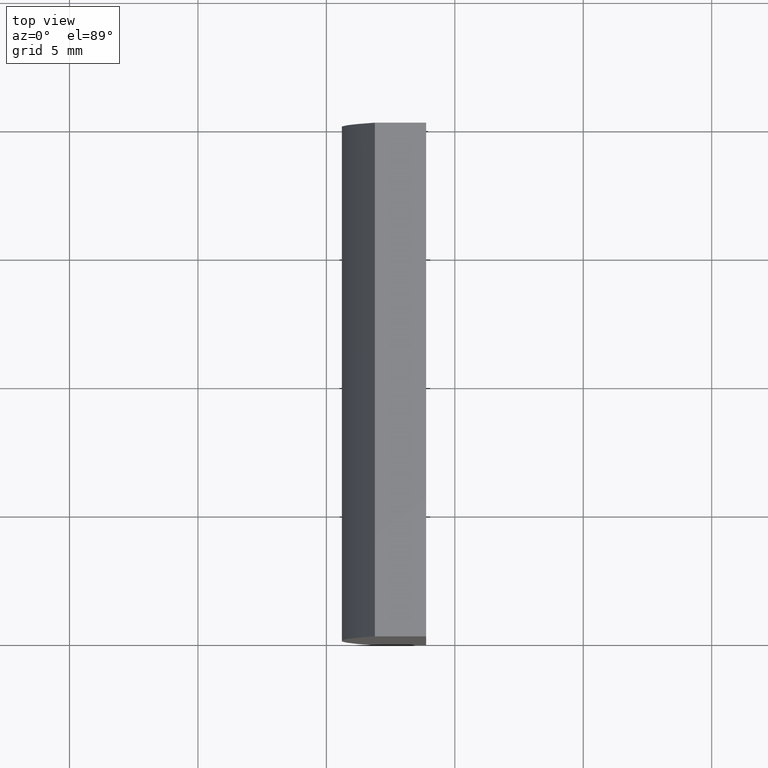
[diagram: clean part render]
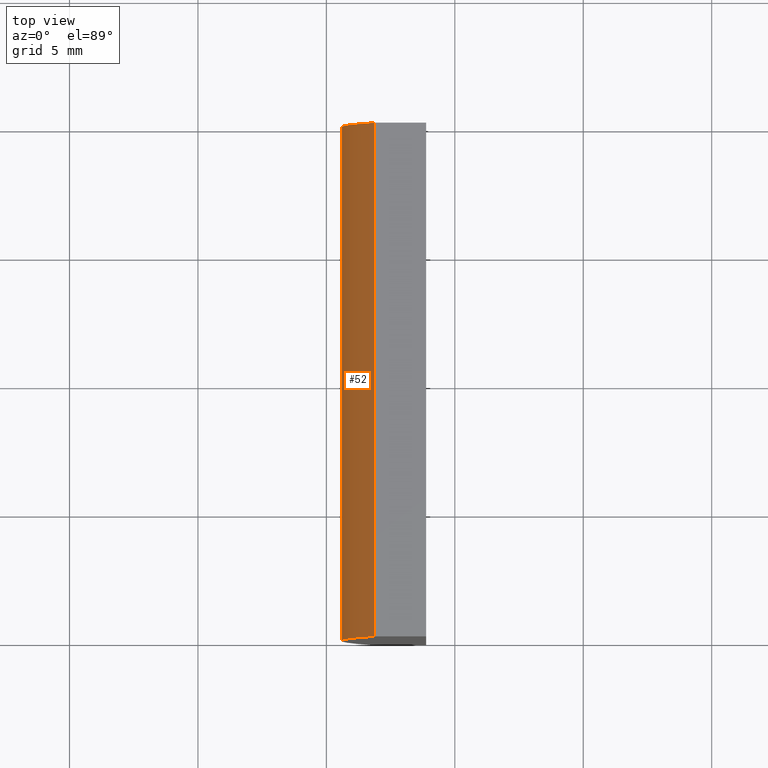
[diagram: same view with one face highlighted and labeled with its STEP entity id]
A machine part, top view. The second image highlights one B-rep face of the part: STEP entity #52.
In plain terms, the highlighted cylindrical surface (partial cylindrical patch) has radius 38.78 mm, axis along (-0, -1, -0).
Its self-contained STEP definition (entity closure, byte-faithful):
#26 = AXIS2_PLACEMENT_3D ( 'NONE', #30, #82, #58 ) ;
#30 = CARTESIAN_POINT ( 'NONE',  ( 4.355204334851265500, 0.0000000000000000000, 4.286263797015675000E-017 ) ) ;
#35 = DIRECTION ( 'NONE',  ( 0.0000000000000000000, 0.0000000000000000000, 1.000000000000000000 ) ) ;
#36 = VECTOR ( 'NONE', #113, 1000.000000000000000 ) ;
#42 = EDGE_CURVE ( 'NONE', #62, #130, #61, .T. ) ;
#44 = DIRECTION ( 'NONE',  ( -0.0000000000000000000, -1.000000000000000000, -0.0000000000000000000 ) ) ;
#46 = VECTOR ( 'NONE', #44, 1000.000000000000000 ) ;
#47 = EDGE_CURVE ( 'NONE', #199, #130, #134, .T. ) ;
#52 = ADVANCED_FACE ( 'NONE', ( #150 ), #105, .T. ) ;
#58 = DIRECTION ( 'NONE',  ( 0.0000000000000000000, 0.0000000000000000000, 1.000000000000000000 ) ) ;
#61 = CIRCLE ( 'NONE', #26, 38.78000000000000100 ) ;
#62 = VERTEX_POINT ( 'NONE', #125 ) ;
#67 = CIRCLE ( 'NONE', #185, 38.78000000000000100 ) ;
#68 = LINE ( 'NONE', #131, #36 ) ;
#73 = AXIS2_PLACEMENT_3D ( 'NONE', #161, #84, #178 ) ;
#75 = ORIENTED_EDGE ( 'NONE', *, *, #189, .F. ) ;
#82 = DIRECTION ( 'NONE',  ( 0.0000000000000000000, 1.000000000000000000, 0.0000000000000000000 ) ) ;
#83 = CARTESIAN_POINT ( 'NONE',  ( 4.355204334851265500, 20.00000000000000000, 4.286263797015675000E-017 ) ) ;
#84 = DIRECTION ( 'NONE',  ( -0.0000000000000000000, -1.000000000000000000, -0.0000000000000000000 ) ) ;
#87 = ORIENTED_EDGE ( 'NONE', *, *, #181, .T. ) ;
#95 = CARTESIAN_POINT ( 'NONE',  ( -33.11329443411465000, 20.00000000000000000, -10.00000000000000000 ) ) ;
#100 = CARTESIAN_POINT ( 'NONE',  ( -33.11329443411465000, 20.00000000000000000, 10.00000000000000000 ) ) ;
#105 = CYLINDRICAL_SURFACE ( 'NONE', #73, 38.78000000000000100 ) ;
#108 = ORIENTED_EDGE ( 'NONE', *, *, #47, .F. ) ;
#113 = DIRECTION ( 'NONE',  ( -0.0000000000000000000, -1.000000000000000000, -0.0000000000000000000 ) ) ;
#125 = CARTESIAN_POINT ( 'NONE',  ( -33.11329443411465000, 0.0000000000000000000, -10.00000000000000000 ) ) ;
#130 = VERTEX_POINT ( 'NONE', #192 ) ;
#131 = CARTESIAN_POINT ( 'NONE',  ( -33.11329443411465000, 20.00000000000000000, -10.00000000000000000 ) ) ;
#134 = LINE ( 'NONE', #100, #46 ) ;
#135 = EDGE_LOOP ( 'NONE', ( #152, #108, #75, #87 ) ) ;
#140 = DIRECTION ( 'NONE',  ( 0.0000000000000000000, 1.000000000000000000, 0.0000000000000000000 ) ) ;
#150 = FACE_OUTER_BOUND ( 'NONE', #135, .T. ) ;
#152 = ORIENTED_EDGE ( 'NONE', *, *, #42, .T. ) ;
#161 = CARTESIAN_POINT ( 'NONE',  ( 4.355204334851265500, 20.00000000000000000, 4.286263797015675000E-017 ) ) ;
#178 = DIRECTION ( 'NONE',  ( 0.0000000000000000000, 0.0000000000000000000, -1.000000000000000000 ) ) ;
#179 = CARTESIAN_POINT ( 'NONE',  ( -33.11329443411465000, 20.00000000000000000, 10.00000000000000000 ) ) ;
#181 = EDGE_CURVE ( 'NONE', #204, #62, #68, .T. ) ;
#185 = AXIS2_PLACEMENT_3D ( 'NONE', #83, #140, #35 ) ;
#189 = EDGE_CURVE ( 'NONE', #204, #199, #67, .T. ) ;
#192 = CARTESIAN_POINT ( 'NONE',  ( -33.11329443411465000, 0.0000000000000000000, 10.00000000000000000 ) ) ;
#199 = VERTEX_POINT ( 'NONE', #179 ) ;
#204 = VERTEX_POINT ( 'NONE', #95 ) ;